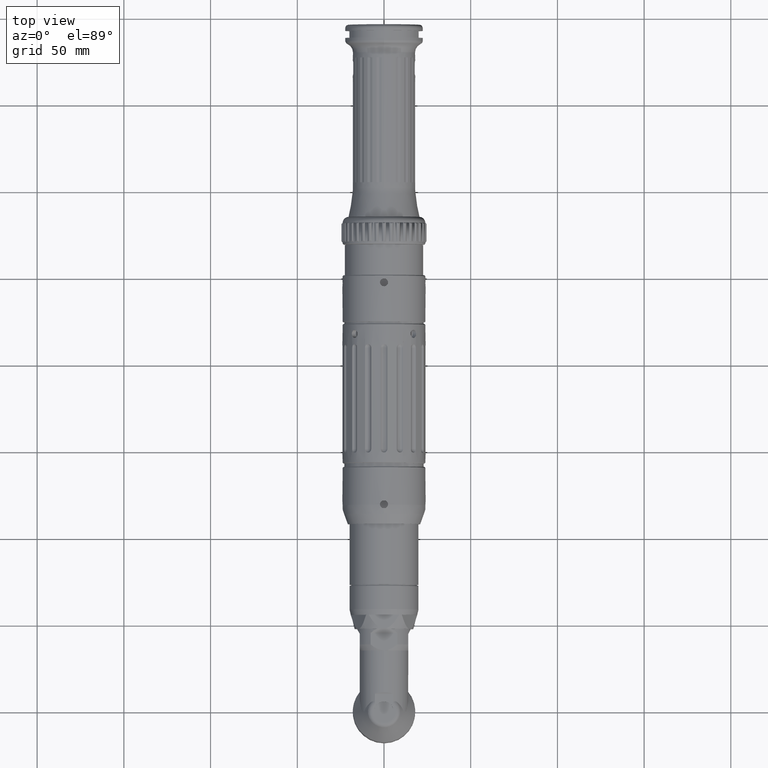
[diagram: clean part render]
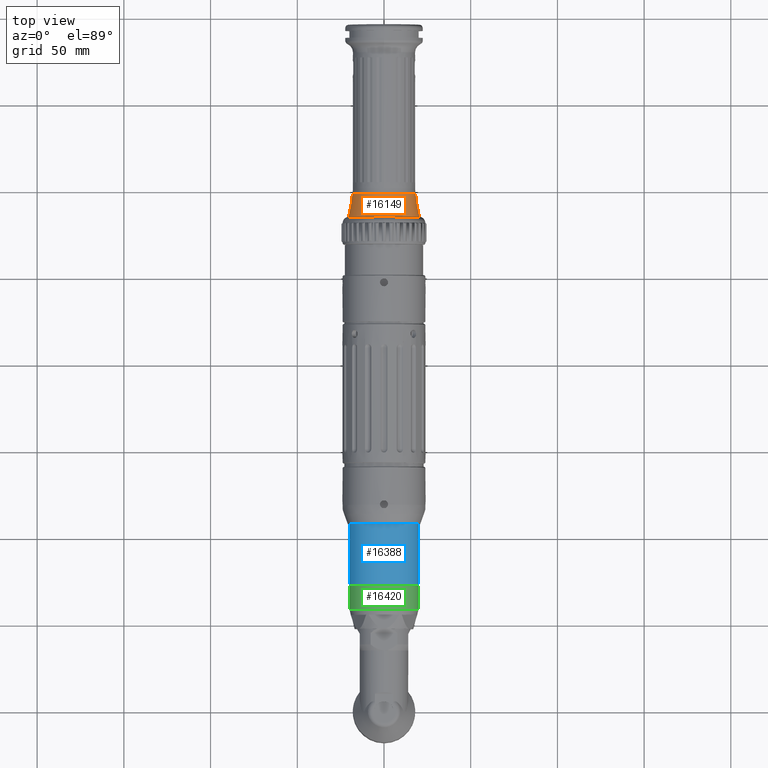
[diagram: same view with three faces highlighted in distinct colors, each labeled with its STEP entity id]
A machine part, top view with three faces highlighted in distinct colors.
Their STEP definitions:

[orange] entity #16149 — the highlighted conical surface has half-angle 9.462 deg.
#90=(
BOUNDED_CURVE()
B_SPLINE_CURVE(2,(#28188,#28189,#28190),.UNSPECIFIED.,.F.,.F.)
B_SPLINE_CURVE_WITH_KNOTS((3,3),(0.177331248463677,1.22238590458291),
 .UNSPECIFIED.)
CURVE()
GEOMETRIC_REPRESENTATION_ITEM()
RATIONAL_B_SPLINE_CURVE((1.00050185933742,1.0017858943597,1.00077448627961))
REPRESENTATION_ITEM('')
);
#91=(
BOUNDED_CURVE()
B_SPLINE_CURVE(2,(#28193,#28194,#28195),.UNSPECIFIED.,.F.,.F.)
B_SPLINE_CURVE_WITH_KNOTS((3,3),(0.301451099232848,1.34650575535226),
 .UNSPECIFIED.)
CURVE()
GEOMETRIC_REPRESENTATION_ITEM()
RATIONAL_B_SPLINE_CURVE((1.00077448627967,1.00178589435986,1.00050185933746))
REPRESENTATION_ITEM('')
);
#2032=CONICAL_SURFACE('',#17789,19.25,9.46232220802565);
#3396=FACE_OUTER_BOUND('',#4512,.T.);
#4512=EDGE_LOOP('',(#12406,#12407,#12408,#12409,#12410,#12411));
#5566=CIRCLE('',#17623,20.5);
#5607=CIRCLE('',#17669,5268.2001466865);
#5621=CIRCLE('',#17790,18.2721215233571);
#5622=CIRCLE('',#17791,5268.20014710396);
#6823=VERTEX_POINT('',#27404);
#6824=VERTEX_POINT('',#27406);
#6920=VERTEX_POINT('',#27749);
#6983=VERTEX_POINT('',#28185);
#6984=VERTEX_POINT('',#28186);
#6985=VERTEX_POINT('',#28191);
#8674=EDGE_CURVE('',#6824,#6823,#5566,.T.);
#8775=EDGE_CURVE('',#6920,#6824,#5607,.T.);
#8920=EDGE_CURVE('',#6983,#6984,#5621,.T.);
#8921=EDGE_CURVE('',#6983,#6920,#90,.T.);
#8922=EDGE_CURVE('',#6823,#6985,#5622,.T.);
#8923=EDGE_CURVE('',#6985,#6984,#91,.T.);
#12406=ORIENTED_EDGE('',*,*,#8920,.F.);
#12407=ORIENTED_EDGE('',*,*,#8921,.T.);
#12408=ORIENTED_EDGE('',*,*,#8775,.T.);
#12409=ORIENTED_EDGE('',*,*,#8674,.T.);
#12410=ORIENTED_EDGE('',*,*,#8922,.T.);
#12411=ORIENTED_EDGE('',*,*,#8923,.T.);
#16149=ADVANCED_FACE('',(#3396),#2032,.T.);
#17623=AXIS2_PLACEMENT_3D('',#27407,#21266,#21267);
#17669=AXIS2_PLACEMENT_3D('',#27750,#21408,#21409);
#17789=AXIS2_PLACEMENT_3D('',#28184,#21774,#21775);
#17790=AXIS2_PLACEMENT_3D('',#28187,#21776,#21777);
#17791=AXIS2_PLACEMENT_3D('',#28192,#21778,#21779);
#21266=DIRECTION('center_axis',(-6.34403086073544E-16,1.,-1.11372105191445E-15));
#21267=DIRECTION('ref_axis',(-1.,-6.34403086073555E-16,-9.79526914692857E-15));
#21408=DIRECTION('center_axis',(-1.,-3.17807733900398E-12,1.78753440645158E-11));
#21409=DIRECTION('ref_axis',(-1.81556610983941E-11,0.174596569282707,-0.984640055042811));
#21774=DIRECTION('center_axis',(6.34403086073544E-16,-1.,1.11372105191445E-15));
#21775=DIRECTION('ref_axis',(-9.79526914692858E-15,1.11372105191444E-15,
1.));
#21776=DIRECTION('center_axis',(-6.34403086073544E-16,1.,-1.11372105191445E-15));
#21777=DIRECTION('ref_axis',(-9.88711765686463E-15,1.11372105191444E-15,
1.));
#21778=DIRECTION('center_axis',(1.,-1.60246750165948E-14,1.02119221616973E-13));
#21779=DIRECTION('ref_axis',(1.0334734184283E-13,0.17519438517758,-0.984533863004341));
#27404=CARTESIAN_POINT('',(7.00000000000006,285.,-19.2678488679973));
#27406=CARTESIAN_POINT('',(-6.99999999999995,285.,-19.2678488679974));
#27407=CARTESIAN_POINT('Origin',(-1.35334295868727E-13,285.,3.34270705812169E-13));
#27749=CARTESIAN_POINT('',(-7.00000000000025,288.14941378806,-18.7084079548216));
#27750=CARTESIAN_POINT('Origin',(-6.99999990435229,-634.809671906115,5168.01303354194));
#28184=CARTESIAN_POINT('Origin',(-1.40092319014278E-13,292.5,3.25917797922811E-13));
#28185=CARTESIAN_POINT('',(-6.99999999999998,298.367270859857,-16.8781048984868));
#28186=CARTESIAN_POINT('',(7.00000000000002,298.367270859857,-16.8781048984866));
#28187=CARTESIAN_POINT('Origin',(-1.47730490403613E-13,298.367270859857,
3.19383294848904E-13));
#28188=CARTESIAN_POINT('Ctrl Pts',(-6.99999999999998,298.367270859857,-16.8781048984868));
#28189=CARTESIAN_POINT('Ctrl Pts',(-6.99999999999997,293.521107252716,-17.7525088563988));
#28190=CARTESIAN_POINT('Ctrl Pts',(-6.99999999999995,288.14941378806,-18.7084079548217));
#28191=CARTESIAN_POINT('',(6.99999999999975,288.14941378806,-18.7084079548216));
#28192=CARTESIAN_POINT('Origin',(6.99999999945559,-634.809671976255,5168.01303395347));
#28193=CARTESIAN_POINT('Ctrl Pts',(7.00000000000005,288.149413788059,-18.7084079548216));
#28194=CARTESIAN_POINT('Ctrl Pts',(7.00000000000003,293.521107252719,-17.7525088563982));
#28195=CARTESIAN_POINT('Ctrl Pts',(7.00000000000002,298.367270859857,-16.8781048984866));

[blue] entity #16388 — the highlighted cylindrical surface (bore or boss wall) has radius 20 mm, axis along (0, 1, 0).
#2470=CYLINDRICAL_SURFACE('',#18347,20.);
#2743=FACE_BOUND('',#4848,.T.);
#3635=FACE_OUTER_BOUND('',#4847,.T.);
#4847=EDGE_LOOP('',(#13463));
#4848=EDGE_LOOP('',(#13464));
#5916=CIRCLE('',#18343,20.);
#5919=CIRCLE('',#18348,20.);
#7320=VERTEX_POINT('',#29759);
#7323=VERTEX_POINT('',#29767);
#9418=EDGE_CURVE('',#7320,#7320,#5916,.T.);
#9421=EDGE_CURVE('',#7323,#7323,#5919,.T.);
#13463=ORIENTED_EDGE('',*,*,#9418,.T.);
#13464=ORIENTED_EDGE('',*,*,#9421,.T.);
#16388=ADVANCED_FACE('',(#3635,#2743),#2470,.T.);
#18343=AXIS2_PLACEMENT_3D('',#29760,#23028,#23029);
#18347=AXIS2_PLACEMENT_3D('',#29766,#23036,#23037);
#18348=AXIS2_PLACEMENT_3D('',#29768,#23038,#23039);
#23028=DIRECTION('center_axis',(2.94209101525666E-15,1.,5.0729288216585E-16));
#23029=DIRECTION('ref_axis',(-1.,2.94209101525666E-15,-1.02028956211981E-14));
#23036=DIRECTION('center_axis',(2.94209101525666E-15,1.,5.0729288216585E-16));
#23037=DIRECTION('ref_axis',(1.02028956211981E-14,5.0729288216582E-16,-1.));
#23038=DIRECTION('center_axis',(-2.94209101525666E-15,-1.,-5.0729288216585E-16));
#23039=DIRECTION('ref_axis',(1.02028956211981E-14,5.0729288216582E-16,-1.));
#29759=CARTESIAN_POINT('',(1.28219964322799E-14,73.,-20.));
#29760=CARTESIAN_POINT('Origin',(-1.91235915991683E-13,73.,-6.56120112195616E-14));
#29766=CARTESIAN_POINT('Origin',(-1.19154686117895E-13,97.5,-5.31833356064983E-14));
#29767=CARTESIAN_POINT('',(1.01039066139999E-13,108.3,-20.));
#29768=CARTESIAN_POINT('Origin',(-8.73801031531227E-14,108.3,-4.77045724791071E-14));

[green] entity #16420 — the highlighted cylindrical surface (bore or boss wall) has radius 20 mm, axis along (0, 1, 0).
#2478=CYLINDRICAL_SURFACE('',#18410,20.);
#2758=FACE_BOUND('',#4895,.T.);
#3667=FACE_OUTER_BOUND('',#4894,.T.);
#4894=EDGE_LOOP('',(#13584));
#4895=EDGE_LOOP('',(#13585));
#5950=CIRCLE('',#18397,20.);
#5951=CIRCLE('',#18411,20.);
#7369=VERTEX_POINT('',#30120);
#7370=VERTEX_POINT('',#30141);
#9478=EDGE_CURVE('',#7369,#7369,#5950,.T.);
#9485=EDGE_CURVE('',#7370,#7370,#5951,.T.);
#13584=ORIENTED_EDGE('',*,*,#9478,.T.);
#13585=ORIENTED_EDGE('',*,*,#9485,.F.);
#16420=ADVANCED_FACE('',(#3667,#2758),#2478,.T.);
#18397=AXIS2_PLACEMENT_3D('',#30121,#23136,#23137);
#18410=AXIS2_PLACEMENT_3D('',#30140,#23168,#23169);
#18411=AXIS2_PLACEMENT_3D('',#30142,#23170,#23171);
#23136=DIRECTION('center_axis',(2.66194366886926E-15,1.,6.29757562080582E-16));
#23137=DIRECTION('ref_axis',(8.37102763056664E-15,6.2975756208056E-16,-1.));
#23168=DIRECTION('center_axis',(2.66194366886926E-15,1.,6.29757562080582E-16));
#23169=DIRECTION('ref_axis',(8.37102763056664E-15,6.2975756208056E-16,-1.));
#23170=DIRECTION('center_axis',(2.66194366886926E-15,1.,6.29757562080582E-16));
#23171=DIRECTION('ref_axis',(-8.37102763056664E-15,-6.2975756208056E-16,
1.));
#30120=CARTESIAN_POINT('',(1.25698296402779E-13,58.7461524227067,-20.0000000000001));
#30121=CARTESIAN_POINT('Origin',(-4.17222562085541E-14,58.7461524227067,
-6.78759379757099E-14));
#30140=CARTESIAN_POINT('Origin',(-2.33497238763479E-14,65.6480762113534,
-6.35293992769058E-14));
#30141=CARTESIAN_POINT('',(1.59195484368236E-13,72.2500000000001,-20.0000000000001));
#30142=CARTESIAN_POINT('Origin',(-5.77577464480247E-15,72.25,-5.93717878467258E-14));